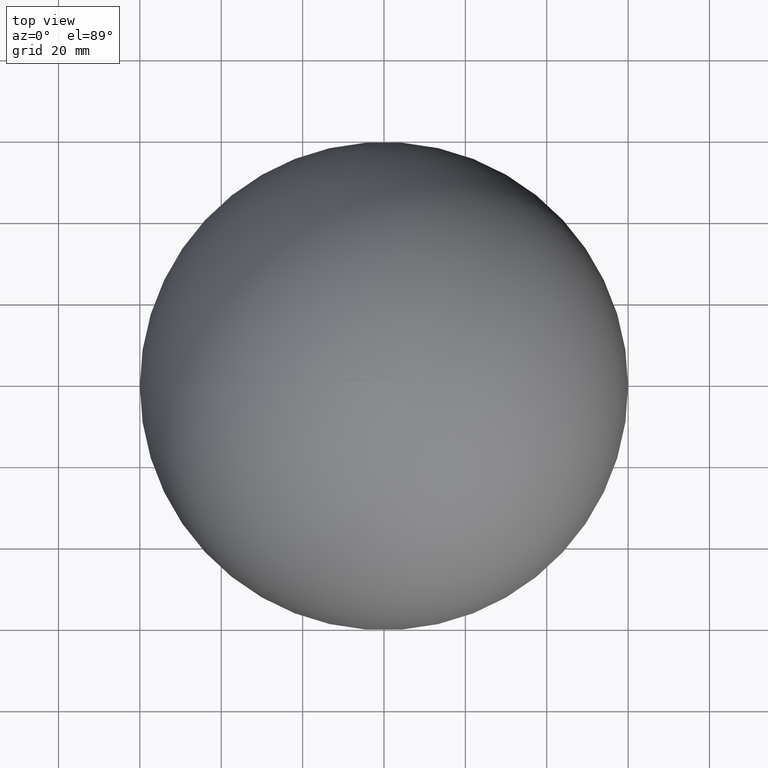
[diagram: clean part render]
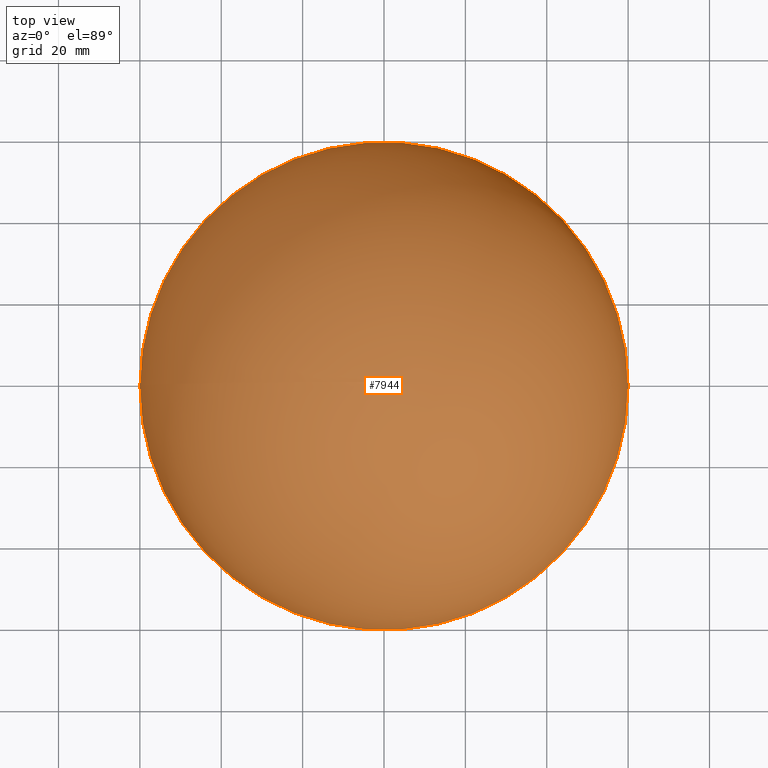
[diagram: same view with one face highlighted and labeled with its STEP entity id]
A machine part, top view. The second image highlights one B-rep face of the part: STEP entity #7944.
In plain terms, the highlighted spherical surface has radius 60 mm.
Its self-contained STEP definition (entity closure, byte-faithful):
#194 = EDGE_CURVE ( 'NONE', #9848, #4409, #8152, .T. ) ;
#1409 = ORIENTED_EDGE ( 'NONE', *, *, #1840, .F. ) ;
#1768 = CARTESIAN_POINT ( 'NONE',  ( 0.000000000000000000, 0.000000000000000000, 0.000000000000000000 ) ) ;
#1840 = EDGE_CURVE ( 'NONE', #4409, #9848, #9016, .T. ) ;
#2245 = DIRECTION ( 'NONE',  ( -1.000000000000000000, 0.000000000000000000, -6.982962677686266711E-15 ) ) ;
#3155 = DIRECTION ( 'NONE',  ( 6.982962677686266711E-15, 0.000000000000000000, -1.000000000000000000 ) ) ;
#3566 = CARTESIAN_POINT ( 'NONE',  ( 0.000000000000000000, 0.000000000000000000, 0.000000000000000000 ) ) ;
#4409 = VERTEX_POINT ( 'NONE', #6175 ) ;
#4716 = SPHERICAL_SURFACE ( 'NONE', #8033, 60.00000000000000000 ) ;
#5322 = AXIS2_PLACEMENT_3D ( 'NONE', #7951, #3155, #2245 ) ;
#5352 = ORIENTED_EDGE ( 'NONE', *, *, #194, .F. ) ;
#6069 = DIRECTION ( 'NONE',  ( -6.982962677686266711E-15, 0.000000000000000000, 1.000000000000000000 ) ) ;
#6175 = CARTESIAN_POINT ( 'NONE',  ( -60.00000000000000000, 0.000000000000000000, -4.189777606611760026E-13 ) ) ;
#6747 = EDGE_LOOP ( 'NONE', ( #1409, #5352 ) ) ;
#6831 = DIRECTION ( 'NONE',  ( -1.000000000000000000, 0.000000000000000000, -6.982962677686266711E-15 ) ) ;
#7541 = AXIS2_PLACEMENT_3D ( 'NONE', #3566, #8240, #9039 ) ;
#7944 = ADVANCED_FACE ( 'NONE', ( #9966 ), #4716, .T. ) ;
#7951 = CARTESIAN_POINT ( 'NONE',  ( 0.000000000000000000, 0.000000000000000000, 0.000000000000000000 ) ) ;
#8033 = AXIS2_PLACEMENT_3D ( 'NONE', #1768, #6069, #6831 ) ;
#8152 = CIRCLE ( 'NONE', #5322, 60.00000000000000000 ) ;
#8240 = DIRECTION ( 'NONE',  ( 6.982962677686266711E-15, 0.000000000000000000, -1.000000000000000000 ) ) ;
#9016 = CIRCLE ( 'NONE', #7541, 60.00000000000000000 ) ;
#9039 = DIRECTION ( 'NONE',  ( -1.000000000000000000, 0.000000000000000000, -6.982962677686266711E-15 ) ) ;
#9385 = CARTESIAN_POINT ( 'NONE',  ( 60.00000000000000000, 7.347880794884118356E-15, 4.189777606611760026E-13 ) ) ;
#9848 = VERTEX_POINT ( 'NONE', #9385 ) ;
#9966 = FACE_OUTER_BOUND ( 'NONE', #6747, .T. ) ;